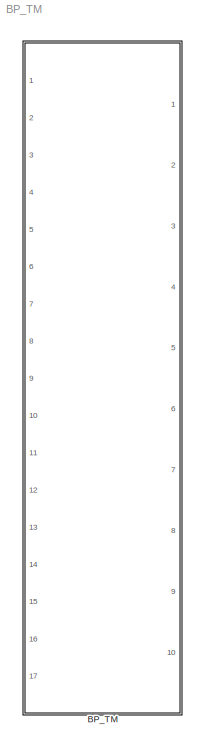
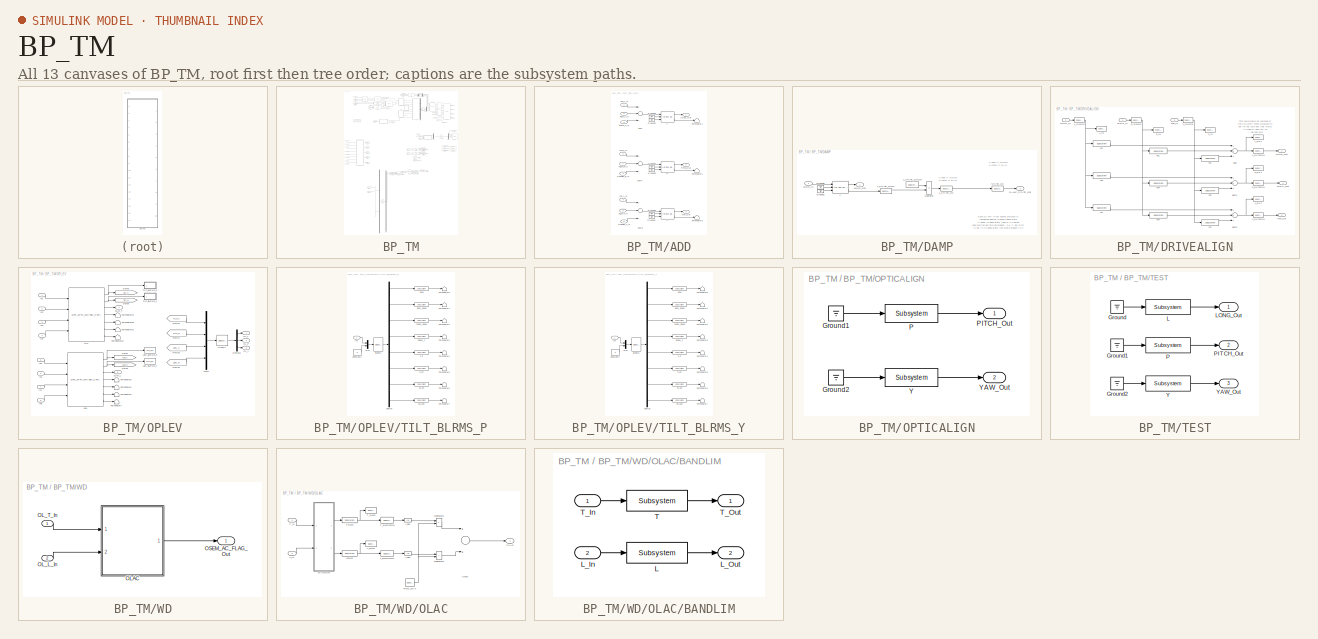
[diagram: thumbnail index - all 13 canvases of the model, root first then tree order]
MODEL BP_TM
KIND model
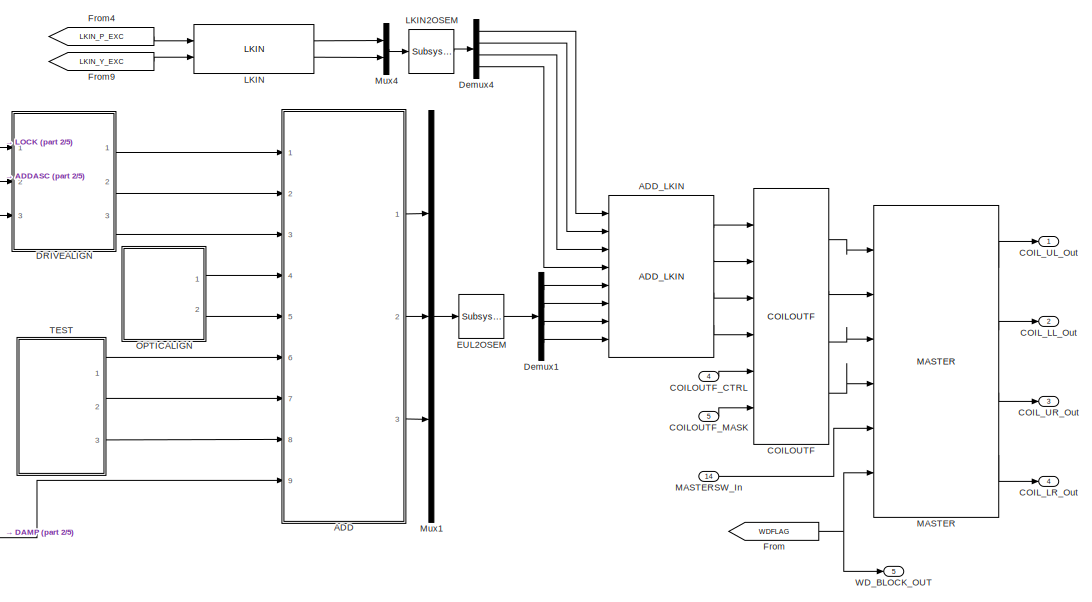
[diagram: BP_TM - part 1/5, top right region]
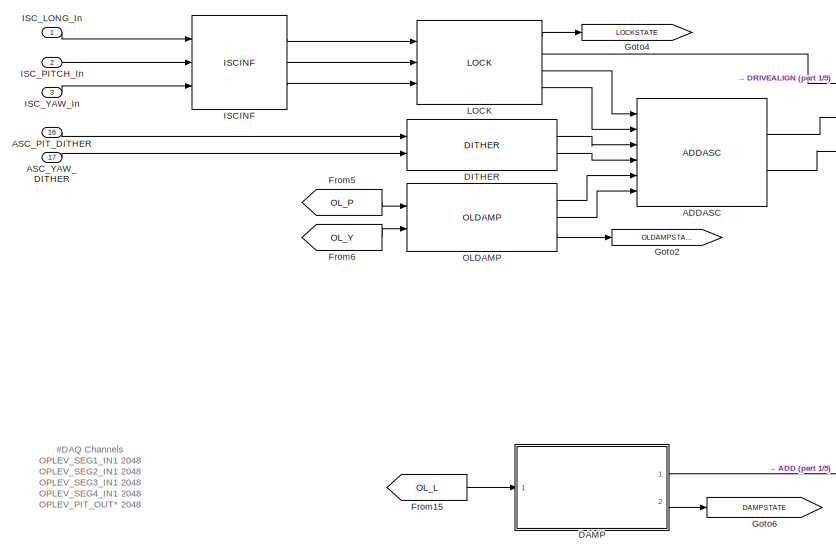
[diagram: BP_TM - part 2/5, top left region]
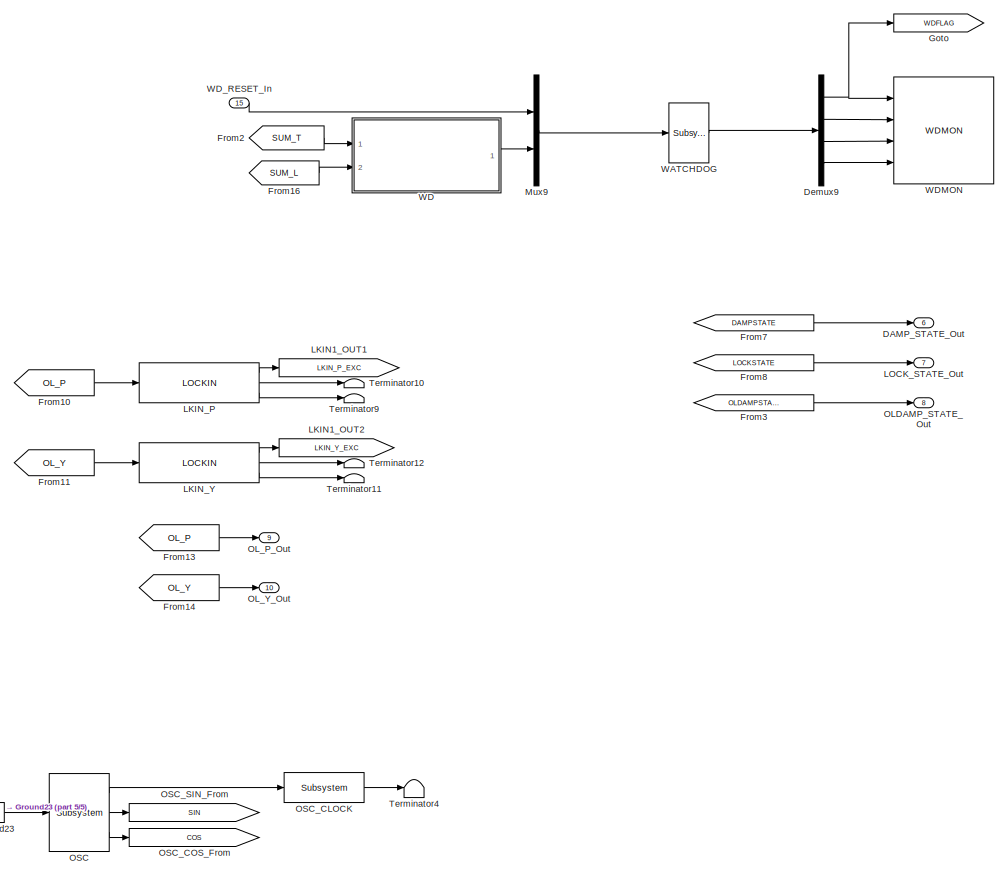
[diagram: BP_TM - part 3/5, middle right region]
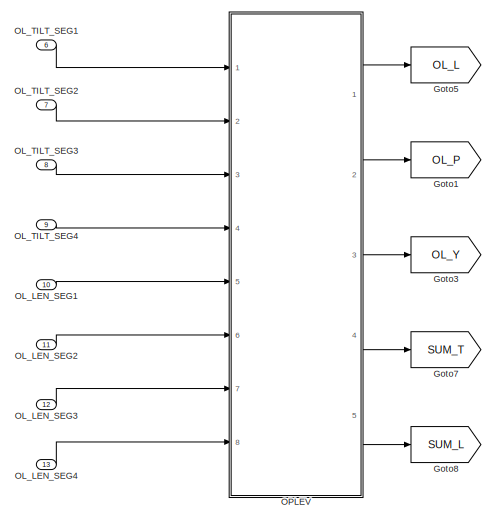
[diagram: BP_TM - part 4/5, middle left region]
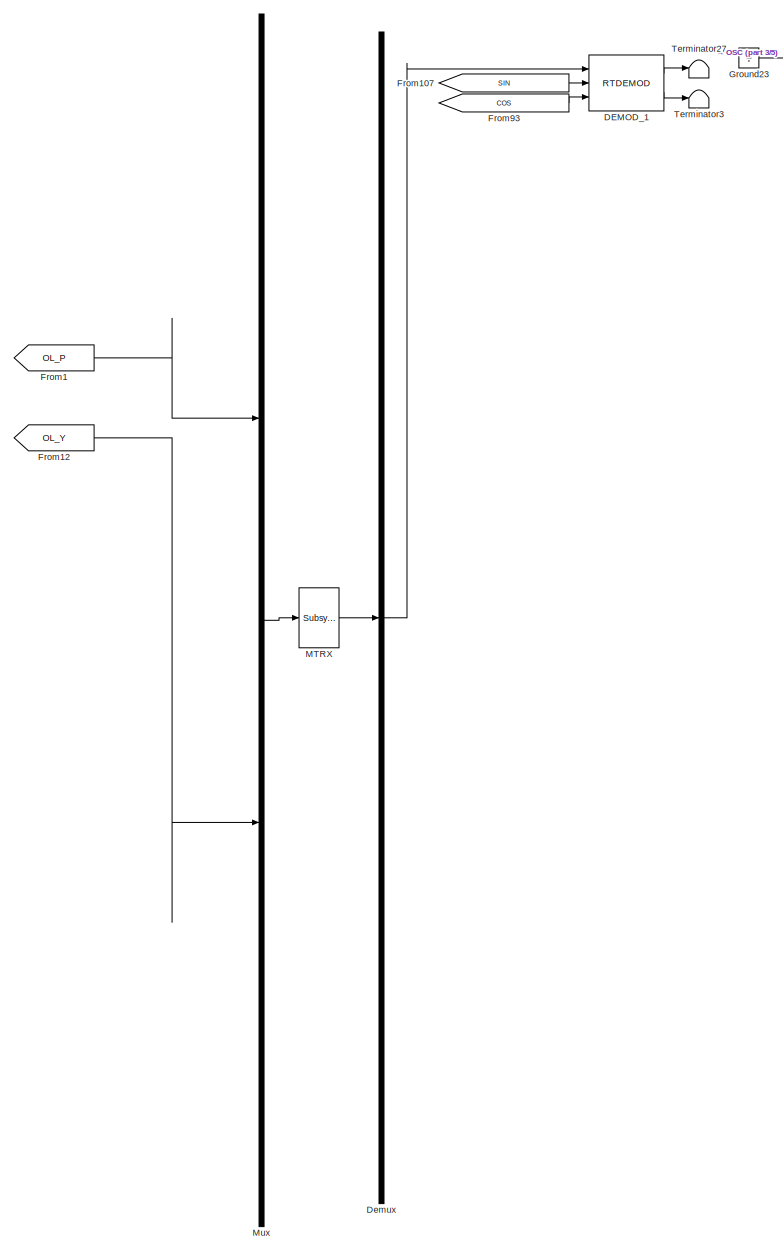
[diagram: BP_TM - part 5/5, bottom center region]
BLOCK [SubSystem] BP_TM
  Ports = [17, 10]
  RequestExecContextInheritance = off
  SID = 1
BLOCK [SubSystem] BP_TM/ADD
  Ports = [9, 3]
  RequestExecContextInheritance = off
  SID = 20
BLOCK [Inport] BP_TM/ADD/DAMP_L_In
  IconDisplay = Port number
  Port = 9
  SID = 29
BLOCK [Ground] BP_TM/ADD/Ground1
  SID = 30
BLOCK [Ground] BP_TM/ADD/Ground2
  SID = 31
BLOCK [Ground] BP_TM/ADD/Ground3
  SID = 32
BLOCK [Ground] BP_TM/ADD/Ground4
  SID = 33
BLOCK [Ground] BP_TM/ADD/Ground5
  SID = 34
BLOCK [Ground] BP_TM/ADD/Ground6
  SID = 35
BLOCK [Inport] BP_TM/ADD/ISC_L_In
  IconDisplay = Port number
  SID = 21
BLOCK [Inport] BP_TM/ADD/ISC_P_In
  IconDisplay = Port number
  Port = 2
  SID = 22
BLOCK [Inport] BP_TM/ADD/ISC_Y_In
  IconDisplay = Port number
  Port = 3
  SID = 23
BLOCK [Reference] BP_TM/ADD/L  REF=cdsFiltCtrl/IIR FM with control
  AttributesFormatString = %<Tag>
  Description = cdsFiltCntrl is the standard IIR filter module (exactly the same as cdsFilt) but with added control data output 'Ctrl'. Filter module digital signal output appears on the first output, which is called 'Val'. 'Ctrl' output has a bit pattern encoding the state of filter's on/off switches (FM1 through FM10). The bit values are:\n                                                                        ...<+4621ch>  <repeated x4 — deduplicated; at blocks: L, P, Y>
  Ports = [3, 2]
  SID = 36
  SourceBlock = cdsFiltCtrl/IIR FM with control
  SourceType = SubSystem
  Tag = cdsFiltCtrl
BLOCK [Outport] BP_TM/ADD/LONG_Out
  IconDisplay = Port number
  SID = 45
BLOCK [Inport] BP_TM/ADD/OFFSET_P_In
  IconDisplay = Port number
  Port = 4
  SID = 24
BLOCK [Inport] BP_TM/ADD/OFFSET_Y_In
  IconDisplay = Port number
  Port = 5
  SID = 25
BLOCK [Reference] BP_TM/ADD/P  REF=cdsFiltCtrl/IIR FM with control
  AttributesFormatString = %<Tag>
  Ports = [3, 2]
  SID = 37
  SourceBlock = cdsFiltCtrl/IIR FM with control
  SourceType = SubSystem
  Tag = cdsFiltCtrl
BLOCK [Outport] BP_TM/ADD/PITCH_Out
  IconDisplay = Port number
  Port = 2
  SID = 46
BLOCK [Sum] BP_TM/ADD/Sum
  InputSameDT = off
  Inputs = +++
  OutDataTypeStr = Inherit: Inherit via internal rule
  Ports = [3, 1]
  SID = 38
  SaturateOnIntegerOverflow = off
BLOCK [Sum] BP_TM/ADD/Sum3
  InputSameDT = off
  Inputs = +++
  OutDataTypeStr = Inherit: Inherit via internal rule
  Ports = [3, 1]
  SID = 39
  SaturateOnIntegerOverflow = off
BLOCK [Sum] BP_TM/ADD/Sum4
  InputSameDT = off
  Inputs = +++
  OutDataTypeStr = Inherit: Inherit via internal rule
  Ports = [3, 1]
  SID = 40
  SaturateOnIntegerOverflow = off
BLOCK [Inport] BP_TM/ADD/TEST_L_In
  IconDisplay = Port number
  Port = 6
  SID = 26
BLOCK [Inport] BP_TM/ADD/TEST_P_In
  IconDisplay = Port number
  Port = 7
  SID = 27
BLOCK [Inport] BP_TM/ADD/TEST_Y_In
  IconDisplay = Port number
  Port = 8
  SID = 28
BLOCK [Terminator] BP_TM/ADD/Terminator1
  SID = 41
BLOCK [Terminator] BP_TM/ADD/Terminator2
  SID = 42
BLOCK [Terminator] BP_TM/ADD/Terminator3
  SID = 43
BLOCK [Reference] BP_TM/ADD/Y  REF=cdsFiltCtrl/IIR FM with control
  AttributesFormatString = %<Tag>
  Ports = [3, 2]
  SID = 44
  SourceBlock = cdsFiltCtrl/IIR FM with control
  SourceType = SubSystem
  Tag = cdsFiltCtrl
BLOCK [Outport] BP_TM/ADD/YAW_Out
  IconDisplay = Port number
  Port = 3
  SID = 47
BLOCK [Reference] BP_TM/ADDASC  REF=VIS_LIB/ADDASC
  Ports = [6, 2]
  SID = 48
  SourceBlock = VIS_LIB/ADDASC
  SourceType = SubSystem
BLOCK [Reference] BP_TM/ADD_LKIN  REF=VIS_LIB/ADD_LKIN
  Ports = [8, 4]
  SID = 49
  SourceBlock = VIS_LIB/ADD_LKIN
  SourceType = SubSystem
BLOCK [Inport] BP_TM/ASC_PIT_DITHER
  IconDisplay = Port number
  Port = 16
  SID = 18
BLOCK [Inport] BP_TM/ASC_YAW_DITHER
  IconDisplay = Port number
  Port = 17
  SID = 19
BLOCK [Reference] BP_TM/COILOUTF  REF=FOUROSEM_COILOUTF_MASTER/COILOUTF
  Ports = [6, 4]
  SID = 50
  SourceBlock = FOUROSEM_COILOUTF_MASTER/COILOUTF
  SourceType = SubSystem
BLOCK [Inport] BP_TM/COILOUTF_CTRL
  IconDisplay = Port number
  Port = 4
  SID = 6
BLOCK [Inport] BP_TM/COILOUTF_MASK
  IconDisplay = Port number
  Port = 5
  SID = 7
BLOCK [Outport] BP_TM/COIL_LL_Out
  IconDisplay = Port number
  Port = 2
  SID = 288
BLOCK [Outport] BP_TM/COIL_LR_Out
  IconDisplay = Port number
  Port = 4
  SID = 290
BLOCK [Outport] BP_TM/COIL_UL_Out
  IconDisplay = Port number
  SID = 287
BLOCK [Outport] BP_TM/COIL_UR_Out
  IconDisplay = Port number
  Port = 3
  SID = 289
BLOCK [SubSystem] BP_TM/DAMP
  Ports = [1, 2]
  RequestExecContextInheritance = off
  SID = 51
BLOCK [Outport] BP_TM/DAMP/DAMP_STATE_Out
  IconDisplay = Port number
  Port = 2
  SID = 62
BLOCK [Ground] BP_TM/DAMP/Ground1
  SID = 53
BLOCK [Ground] BP_TM/DAMP/Ground6
  SID = 54
BLOCK [Reference] BP_TM/DAMP/L  REF=cdsFiltCtrl/IIR FM with control
  AttributesFormatString = %<Tag>
  Ports = [3, 2]
  SID = 55
  SourceBlock = cdsFiltCtrl/IIR FM with control
  SourceType = SubSystem
  Tag = cdsFiltCtrl
BLOCK [Inport] BP_TM/DAMP/LONG_In
  IconDisplay = Port number
  SID = 52
BLOCK [Outport] BP_TM/DAMP/LONG_Out
  IconDisplay = Port number
  SID = 61
BLOCK [Reference] BP_TM/DAMP/L_STATE_GOOD  REF=cdsEpicsIn/Subsystem
  AttributesFormatString = %<Tag>
  Description = Purpose:                                                                              \nCreate an EPICS input channel connection to the FE realtime controls.                 \n                                                                                      \nOperation:                                                                            \nOutputs value from an EPICS ai record. Value is ...<+266ch>
  Ports = [0, 1]
  SID = 56
  SourceBlock = cdsEpicsIn/Subsystem
  SourceType = SubSystem
  Tag = cdsEpicsIn
BLOCK [Reference] BP_TM/DAMP/L_STATE_NOW  REF=cdsEpicsOut/Subsystem
  AttributesFormatString = %<Tag>
  Description = Purpose:                                          \nOutput a FE signal to an EPICS channel.           \n                                                  \nOperation:                                        \nTakes input value and passes it to EPICS record.  \n                                                  \nUsage:                                            \nName the part with the desired EPICS...<+14ch>  <repeated x28 — deduplicated; at blocks: L_STATE_NOW, L_STATE_OK, STATE_OK, L_INMON, L_OUTMON, P_INMON, P_OUTMON, Y_INMON, Y_OUTMON, 100M_300M, 10_30, 1_3, 300M_1, 30M, 30M_100M, 30_100, +4 more>
  Ports = [1, 1]
  SID = 57
  SourceBlock = cdsEpicsOut/Subsystem
  SourceType = SubSystem
  Tag = cdsEpicsOutput
BLOCK [Reference] BP_TM/DAMP/L_STATE_OK  REF=cdsEpicsOut/Subsystem
  AttributesFormatString = %<Tag>
  Ports = [1, 1]
  SID = 58
  SourceBlock = cdsEpicsOut/Subsystem
  SourceType = SubSystem
  Tag = cdsEpicsOutput
BLOCK [RelationalOperator] BP_TM/DAMP/Operator
  InputSameDT = off
  Operator = ==
  OutDataTypeStr = boolean
  Ports = [2, 1]
  SID = 59
BLOCK [Reference] BP_TM/DAMP/STATE_OK  REF=cdsEpicsOut/Subsystem
  AttributesFormatString = %<Tag>
  Ports = [1, 1]
  SID = 60
  SourceBlock = cdsEpicsOut/Subsystem
  SourceType = SubSystem
  Tag = cdsEpicsOutput
BLOCK [Outport] BP_TM/DAMP_STATE_Out
  IconDisplay = Port number
  Port = 6
  SID = 292
BLOCK [Reference] BP_TM/DEMOD_1  REF=rtdemod/RTDEMOD
  Ports = [3, 2]
  SID = 66
  SourceBlock = rtdemod/RTDEMOD
  SourceType = SubSystem
  Tag = top_names
BLOCK [Reference] BP_TM/DITHER  REF=VIS_LIB/DITHER
  Ports = [2, 2]
  SID = 67
  SourceBlock = VIS_LIB/DITHER
  SourceType = SubSystem
BLOCK [SubSystem] BP_TM/DRIVEALIGN
  Ports = [3, 3]
  RequestExecContextInheritance = off
  SID = 68
BLOCK [Reference] BP_TM/DRIVEALIGN/L2L  REF=cdsFilt/Subsystem
  AttributesFormatString = %<Tag>
  Description = Purpose:                                                                                                                                                                                                                                  \nStandard CDS IIR filter module.                                                                                                                                     ...<+1302ch>  <repeated x16 — deduplicated; at blocks: L2L, L2P, L2Y, P2L, P2P, P2Y, Y2L, Y2P, Y2Y, P, Y, L, T>
  Ports = [1, 1]
  SID = 72
  SourceBlock = cdsFilt/Subsystem
  SourceType = SubSystem
  Tag = cdsFilt
BLOCK [Reference] BP_TM/DRIVEALIGN/L2P  REF=cdsFilt/Subsystem
  AttributesFormatString = %<Tag>
  Ports = [1, 1]
  SID = 73
  SourceBlock = cdsFilt/Subsystem
  SourceType = SubSystem
  Tag = cdsFilt
BLOCK [Reference] BP_TM/DRIVEALIGN/L2Y  REF=cdsFilt/Subsystem
  AttributesFormatString = %<Tag>
  Ports = [1, 1]
  SID = 74
  SourceBlock = cdsFilt/Subsystem
  SourceType = SubSystem
  Tag = cdsFilt
BLOCK [Inport] BP_TM/DRIVEALIGN/LONG_In
  IconDisplay = Port number
  SID = 69
BLOCK [Outport] BP_TM/DRIVEALIGN/LONG_Out
  IconDisplay = Port number
  SID = 96
BLOCK [Reference] BP_TM/DRIVEALIGN/L_IN  REF=cdsTP/Subsystem
  AttributesFormatString = %<Tag>
  Ports = [1]
  SID = 75
  SourceBlock = cdsTP/Subsystem
  SourceType = SubSystem
  Tag = Test Point
BLOCK [Reference] BP_TM/DRIVEALIGN/L_INMON  REF=cdsEpicsOut/Subsystem
  AttributesFormatString = %<Tag>
  Ports = [1, 1]
  SID = 76
  SourceBlock = cdsEpicsOut/Subsystem
  SourceType = SubSystem
  Tag = cdsEpicsOutput
BLOCK [Reference] BP_TM/DRIVEALIGN/L_OUT  REF=cdsTP/Subsystem
  AttributesFormatString = %<Tag>
  Ports = [1]
  SID = 77
  SourceBlock = cdsTP/Subsystem
  SourceType = SubSystem
  Tag = Test Point
BLOCK [Reference] BP_TM/DRIVEALIGN/L_OUTMON  REF=cdsEpicsOut/Subsystem
  AttributesFormatString = %<Tag>
  Ports = [1, 1]
  SID = 78
  SourceBlock = cdsEpicsOut/Subsystem
  SourceType = SubSystem
  Tag = cdsEpicsOutput
BLOCK [Reference] BP_TM/DRIVEALIGN/P2L  REF=cdsFilt/Subsystem
  AttributesFormatString = %<Tag>
  Ports = [1, 1]
  SID = 79
  SourceBlock = cdsFilt/Subsystem
  SourceType = SubSystem
  Tag = cdsFilt
BLOCK [Reference] BP_TM/DRIVEALIGN/P2P  REF=cdsFilt/Subsystem
  AttributesFormatString = %<Tag>
  Ports = [1, 1]
  SID = 80
  SourceBlock = cdsFilt/Subsystem
  SourceType = SubSystem
  Tag = cdsFilt
BLOCK [Reference] BP_TM/DRIVEALIGN/P2Y  REF=cdsFilt/Subsystem
  AttributesFormatString = %<Tag>
  Ports = [1, 1]
  SID = 81
  SourceBlock = cdsFilt/Subsystem
  SourceType = SubSystem
  Tag = cdsFilt
BLOCK [Inport] BP_TM/DRIVEALIGN/PITCH_In
  IconDisplay = Port number
  Port = 2
  SID = 70
BLOCK [Outport] BP_TM/DRIVEALIGN/PITCH_Out
  IconDisplay = Port number
  Port = 2
  SID = 97
BLOCK [Reference] BP_TM/DRIVEALIGN/P_IN  REF=cdsTP/Subsystem
  AttributesFormatString = %<Tag>
  Ports = [1]
  SID = 82
  SourceBlock = cdsTP/Subsystem
  SourceType = SubSystem
  Tag = Test Point
BLOCK [Reference] BP_TM/DRIVEALIGN/P_INMON  REF=cdsEpicsOut/Subsystem
  AttributesFormatString = %<Tag>
  Ports = [1, 1]
  SID = 83
  SourceBlock = cdsEpicsOut/Subsystem
  SourceType = SubSystem
  Tag = cdsEpicsOutput
BLOCK [Reference] BP_TM/DRIVEALIGN/P_OUT  REF=cdsTP/Subsystem
  AttributesFormatString = %<Tag>
  Ports = [1]
  SID = 84
  SourceBlock = cdsTP/Subsystem
  SourceType = SubSystem
  Tag = Test Point
BLOCK [Reference] BP_TM/DRIVEALIGN/P_OUTMON  REF=cdsEpicsOut/Subsystem
  AttributesFormatString = %<Tag>
  Ports = [1, 1]
  SID = 85
  SourceBlock = cdsEpicsOut/Subsystem
  SourceType = SubSystem
  Tag = cdsEpicsOutput
BLOCK [Sum] BP_TM/DRIVEALIGN/Sum
  InputSameDT = off
  Inputs = +++
  OutDataTypeStr = Inherit: Inherit via internal rule
  Ports = [3, 1]
  SID = 86
  SaturateOnIntegerOverflow = off
BLOCK [Sum] BP_TM/DRIVEALIGN/Sum1
  InputSameDT = off
  Inputs = +++
  OutDataTypeStr = Inherit: Inherit via internal rule
  Ports = [3, 1]
  SID = 87
  SaturateOnIntegerOverflow = off
BLOCK [Sum] BP_TM/DRIVEALIGN/Sum2
  InputSameDT = off
  Inputs = +++
  OutDataTypeStr = Inherit: Inherit via internal rule
  Ports = [3, 1]
  SID = 88
  SaturateOnIntegerOverflow = off
BLOCK [Reference] BP_TM/DRIVEALIGN/Y2L  REF=cdsFilt/Subsystem
  AttributesFormatString = %<Tag>
  Ports = [1, 1]
  SID = 89
  SourceBlock = cdsFilt/Subsystem
  SourceType = SubSystem
  Tag = cdsFilt
BLOCK [Reference] BP_TM/DRIVEALIGN/Y2P  REF=cdsFilt/Subsystem
  AttributesFormatString = %<Tag>
  Ports = [1, 1]
  SID = 90
  SourceBlock = cdsFilt/Subsystem
  SourceType = SubSystem
  Tag = cdsFilt
BLOCK [Reference] BP_TM/DRIVEALIGN/Y2Y  REF=cdsFilt/Subsystem
  AttributesFormatString = %<Tag>
  Ports = [1, 1]
  SID = 91
  SourceBlock = cdsFilt/Subsystem
  SourceType = SubSystem
  Tag = cdsFilt
BLOCK [Inport] BP_TM/DRIVEALIGN/YAW_In
  IconDisplay = Port number
  Port = 3
  SID = 71
BLOCK [Outport] BP_TM/DRIVEALIGN/YAW_Out
  IconDisplay = Port number
  Port = 3
  SID = 98
BLOCK [Reference] BP_TM/DRIVEALIGN/Y_IN  REF=cdsTP/Subsystem
  AttributesFormatString = %<Tag>
  Ports = [1]
  SID = 92
  SourceBlock = cdsTP/Subsystem
  SourceType = SubSystem
  Tag = Test Point
BLOCK [Reference] BP_TM/DRIVEALIGN/Y_INMON  REF=cdsEpicsOut/Subsystem
  AttributesFormatString = %<Tag>
  Ports = [1, 1]
  SID = 93
  SourceBlock = cdsEpicsOut/Subsystem
  SourceType = SubSystem
  Tag = cdsEpicsOutput
BLOCK [Reference] BP_TM/DRIVEALIGN/Y_OUT  REF=cdsTP/Subsystem
  AttributesFormatString = %<Tag>
  Ports = [1]
  SID = 94
  SourceBlock = cdsTP/Subsystem
  SourceType = SubSystem
  Tag = Test Point
BLOCK [Reference] BP_TM/DRIVEALIGN/Y_OUTMON  REF=cdsEpicsOut/Subsystem
  AttributesFormatString = %<Tag>
  Ports = [1, 1]
  SID = 95
  SourceBlock = cdsEpicsOut/Subsystem
  SourceType = SubSystem
  Tag = cdsEpicsOutput
BLOCK [Demux] BP_TM/Demux
  DisplayOption = bar
  Outputs = 1
  Ports = [1, 1]
  SID = 100
BLOCK [Demux] BP_TM/Demux1
  DisplayOption = bar
  Ports = [1, 4]
  SID = 101
BLOCK [Demux] BP_TM/Demux4
  DisplayOption = bar
  Ports = [1, 4]
  SID = 102
BLOCK [Demux] BP_TM/Demux9
  DisplayOption = bar
  Ports = [1, 4]
  SID = 103
BLOCK [Reference] BP_TM/EUL2OSEM  REF=cdsMuxMatrix/Subsystem
  AttributesFormatString = %<Tag>
  Description = Any size matrix. Inputs and outputs must be connected using Mux and Demux parts.
  Ports = [1, 1]
  SID = 104
  SourceBlock = cdsMuxMatrix/Subsystem
  SourceType = SubSystem
  Tag = cdsMuxMatrix
BLOCK [From] BP_TM/From
  CloseFcn = tagdialog Close
  GotoTag = WDFLAG
  SID = 105
BLOCK [From] BP_TM/From1
  CloseFcn = tagdialog Close
  GotoTag = OL_P
  SID = 106
BLOCK [From] BP_TM/From10
  CloseFcn = tagdialog Close
  GotoTag = OL_P
  SID = 107
BLOCK [From] BP_TM/From107
  GotoTag = SIN
  SID = 108
BLOCK [From] BP_TM/From11
  CloseFcn = tagdialog Close
  GotoTag = OL_Y
  SID = 109
BLOCK [From] BP_TM/From12
  CloseFcn = tagdialog Close
  GotoTag = OL_Y
  SID = 110
BLOCK [From] BP_TM/From13
  CloseFcn = tagdialog Close
  GotoTag = OL_P
  SID = 111
BLOCK [From] BP_TM/From14
  CloseFcn = tagdialog Close
  GotoTag = OL_Y
  SID = 112
BLOCK [From] BP_TM/From15
  CloseFcn = tagdialog Close
  GotoTag = OL_L
  SID = 113
BLOCK [From] BP_TM/From16
  GotoTag = SUM_L
  SID = 114
BLOCK [From] BP_TM/From2
  GotoTag = SUM_T
  SID = 115
BLOCK [From] BP_TM/From3
  CloseFcn = tagdialog Close
  GotoTag = OLDAMPSTATE
  SID = 116
BLOCK [From] BP_TM/From4
  CloseFcn = tagdialog Close
  GotoTag = LKIN_P_EXC
  SID = 117
BLOCK [From] BP_TM/From5
  CloseFcn = tagdialog Close
  GotoTag = OL_P
  SID = 118
BLOCK [From] BP_TM/From6
  CloseFcn = tagdialog Close
  GotoTag = OL_Y
  SID = 119
BLOCK [From] BP_TM/From7
  CloseFcn = tagdialog Close
  GotoTag = DAMPSTATE
  SID = 120
BLOCK [From] BP_TM/From8
  CloseFcn = tagdialog Close
  GotoTag = LOCKSTATE
  SID = 121
BLOCK [From] BP_TM/From9
  CloseFcn = tagdialog Close
  GotoTag = LKIN_Y_EXC
  SID = 122
BLOCK [From] BP_TM/From93
  GotoTag = COS
  SID = 123
BLOCK [Goto] BP_TM/Goto
  GotoTag = WDFLAG
  SID = 124
BLOCK [Goto] BP_TM/Goto1
  GotoTag = OL_P
  SID = 125
BLOCK [Goto] BP_TM/Goto2
  GotoTag = OLDAMPSTATE
  SID = 126
BLOCK [Goto] BP_TM/Goto3
  GotoTag = OL_Y
  SID = 127
BLOCK [Goto] BP_TM/Goto4
  GotoTag = LOCKSTATE
  SID = 128
BLOCK [Goto] BP_TM/Goto5
  GotoTag = OL_L
  SID = 129
BLOCK [Goto] BP_TM/Goto6
  GotoTag = DAMPSTATE
  SID = 130
BLOCK [Goto] BP_TM/Goto7
  GotoTag = SUM_T
  SID = 131
BLOCK [Goto] BP_TM/Goto8
  GotoTag = SUM_L
  SID = 132
BLOCK [Ground] BP_TM/Ground23
  SID = 133
BLOCK [Reference] BP_TM/ISCINF  REF=VIS_LIB/ISCINF
  Ports = [3, 3]
  SID = 134
  SourceBlock = VIS_LIB/ISCINF
  SourceType = SubSystem
BLOCK [Inport] BP_TM/ISC_LONG_In
  IconDisplay = Port number
  SID = 3
BLOCK [Inport] BP_TM/ISC_PITCH_In
  IconDisplay = Port number
  Port = 2
  SID = 4
BLOCK [Inport] BP_TM/ISC_YAW_In
  IconDisplay = Port number
  Port = 3
  SID = 5
BLOCK [Reference] BP_TM/LKIN  REF=VIS_LIB/LKIN
  Ports = [2, 2]
  SID = 135
  SourceBlock = VIS_LIB/LKIN
  SourceType = SubSystem
BLOCK [Goto] BP_TM/LKIN1_OUT1
  GotoTag = LKIN_P_EXC
  SID = 136
BLOCK [Goto] BP_TM/LKIN1_OUT2
  GotoTag = LKIN_Y_EXC
  SID = 137
BLOCK [Reference] BP_TM/LKIN2OSEM  REF=cdsMuxMatrix/Subsystem
  AttributesFormatString = %<Tag>
  Description = Any size matrix. Inputs and outputs must be connected using Mux and Demux parts.
  Ports = [1, 1]
  SID = 138
  SourceBlock = cdsMuxMatrix/Subsystem
  SourceType = SubSystem
  Tag = cdsMuxMatrix
BLOCK [Reference] BP_TM/LKIN_P  REF=lockin/LOCKIN
  AttributesFormatString = %<Tag>
  Description = ADL=LOCKIN.adl
  Ports = [1, 3]
  SID = 139
  SourceBlock = lockin/LOCKIN
  SourceType = SubSystem
BLOCK [Reference] BP_TM/LKIN_Y  REF=lockin/LOCKIN
  AttributesFormatString = %<Tag>
  Description = ADL=LOCKIN.adl
  Ports = [1, 3]
  SID = 140
  SourceBlock = lockin/LOCKIN
  SourceType = SubSystem
BLOCK [Reference] BP_TM/LOCK  REF=VIS_LIB/LOCK
  Ports = [3, 4]
  SID = 141
  SourceBlock = VIS_LIB/LOCK
  SourceType = SubSystem
BLOCK [Outport] BP_TM/LOCK_STATE_Out
  IconDisplay = Port number
  Port = 7
  SID = 293
BLOCK [Reference] BP_TM/MASTER  REF=VIS_LIB/MASTER
  Ports = [6, 4]
  SID = 142
  SourceBlock = VIS_LIB/MASTER
  SourceType = SubSystem
BLOCK [Inport] BP_TM/MASTERSW_In
  IconDisplay = Port number
  Port = 14
  SID = 16
BLOCK [Reference] BP_TM/MTRX  REF=cdsMuxMatrix/Subsystem
  AttributesFormatString = %<Tag>
  Description = Any size matrix. Inputs and outputs must be connected using Mux and Demux parts.
  Ports = [1, 1]
  SID = 143
  SourceBlock = cdsMuxMatrix/Subsystem
  SourceType = SubSystem
  Tag = cdsMuxMatrix
BLOCK [Mux] BP_TM/Mux
  DisplayOption = bar
  Inputs = 2
  Ports = [2, 1]
  SID = 144
BLOCK [Mux] BP_TM/Mux1
  DisplayOption = bar
  Inputs = 3
  Ports = [3, 1]
  SID = 145
BLOCK [Mux] BP_TM/Mux4
  DisplayOption = bar
  Inputs = 2
  Ports = [2, 1]
  SID = 146
BLOCK [Mux] BP_TM/Mux9
  DisplayOption = bar
  Inputs = 2
  Ports = [2, 1]
  SID = 147
BLOCK [Reference] BP_TM/OLDAMP  REF=VIS_LIB/OLDAMP
  Ports = [2, 3]
  SID = 148
  SourceBlock = VIS_LIB/OLDAMP
  SourceType = SubSystem
BLOCK [Outport] BP_TM/OLDAMP_STATE_Out
  IconDisplay = Port number
  Port = 8
  SID = 294
BLOCK [Inport] BP_TM/OL_LEN_SEG1
  IconDisplay = Port number
  Port = 10
  SID = 12
BLOCK [Inport] BP_TM/OL_LEN_SEG2
  IconDisplay = Port number
  Port = 11
  SID = 13
BLOCK [Inport] BP_TM/OL_LEN_SEG3
  IconDisplay = Port number
  Port = 12
  SID = 14
BLOCK [Inport] BP_TM/OL_LEN_SEG4
  IconDisplay = Port number
  Port = 13
  SID = 15
BLOCK [Outport] BP_TM/OL_P_Out
  IconDisplay = Port number
  Port = 9
  SID = 295
BLOCK [Inport] BP_TM/OL_TILT_SEG1
  IconDisplay = Port number
  Port = 6
  SID = 8
BLOCK [Inport] BP_TM/OL_TILT_SEG2
  IconDisplay = Port number
  Port = 7
  SID = 9
BLOCK [Inport] BP_TM/OL_TILT_SEG3
  IconDisplay = Port number
  Port = 8
  SID = 10
BLOCK [Inport] BP_TM/OL_TILT_SEG4
  IconDisplay = Port number
  Port = 9
  SID = 11
BLOCK [Outport] BP_TM/OL_Y_Out
  IconDisplay = Port number
  Port = 10
  SID = 296
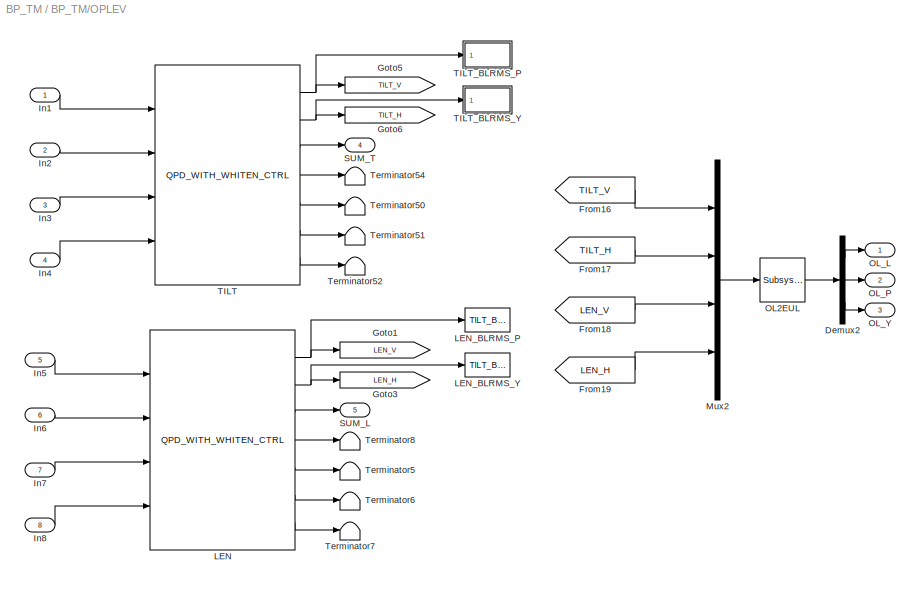
BLOCK [SubSystem] BP_TM/OPLEV
  Ports = [8, 5]
  RequestExecContextInheritance = off
  SID = 149
BLOCK [Demux] BP_TM/OPLEV/Demux2
  DisplayOption = bar
  Outputs = 3
  Ports = [1, 3]
  SID = 158
BLOCK [From] BP_TM/OPLEV/From16
  CloseFcn = tagdialog Close
  GotoTag = TILT_V
  SID = 159
BLOCK [From] BP_TM/OPLEV/From17
  CloseFcn = tagdialog Close
  GotoTag = TILT_H
  SID = 160
BLOCK [From] BP_TM/OPLEV/From18
  CloseFcn = tagdialog Close
  GotoTag = LEN_V
  SID = 161
BLOCK [From] BP_TM/OPLEV/From19
  CloseFcn = tagdialog Close
  GotoTag = LEN_H
  SID = 162
BLOCK [Goto] BP_TM/OPLEV/Goto1
  GotoTag = LEN_V
  SID = 163
BLOCK [Goto] BP_TM/OPLEV/Goto3
  GotoTag = LEN_H
  SID = 164
BLOCK [Goto] BP_TM/OPLEV/Goto5
  GotoTag = TILT_V
  SID = 165
BLOCK [Goto] BP_TM/OPLEV/Goto6
  GotoTag = TILT_H
  SID = 166
BLOCK [Inport] BP_TM/OPLEV/In1
  IconDisplay = Port number
  SID = 150
BLOCK [Inport] BP_TM/OPLEV/In2
  IconDisplay = Port number
  Port = 2
  SID = 151
BLOCK [Inport] BP_TM/OPLEV/In3
  IconDisplay = Port number
  Port = 3
  SID = 152
BLOCK [Inport] BP_TM/OPLEV/In4
  IconDisplay = Port number
  Port = 4
  SID = 153
BLOCK [Inport] BP_TM/OPLEV/In5
  IconDisplay = Port number
  Port = 5
  SID = 154
BLOCK [Inport] BP_TM/OPLEV/In6
  IconDisplay = Port number
  Port = 6
  SID = 155
BLOCK [Inport] BP_TM/OPLEV/In7
  IconDisplay = Port number
  Port = 7
  SID = 156
BLOCK [Inport] BP_TM/OPLEV/In8
  IconDisplay = Port number
  Port = 8
  SID = 157
BLOCK [Reference] BP_TM/OPLEV/LEN  REF=QPD/QPD_WITH_WHITEN_CTRL
  Ports = [4, 7]
  SID = 167
  SourceBlock = QPD/QPD_WITH_WHITEN_CTRL
  SourceType = SubSystem
BLOCK [Reference] BP_TM/OPLEV/LEN_BLRMS_P  REF=VIS_LIB/TypeBpOptics/Subsystem/TILT_BLRMS_P
  Ports = [1]
  RTWMemSecDataConstants = Inherit from model
  RTWMemSecDataInternal = Inherit from model
  RTWMemSecDataParameters = Inherit from model
  RTWMemSecFuncExecute = Inherit from model
  RTWMemSecFuncInitTerm = Inherit from model
  SID = 168
  SourceBlock = VIS_LIB/TypeBpOptics/Subsystem/TILT_BLRMS_P
  SourceType = SubSystem
BLOCK [Reference] BP_TM/OPLEV/LEN_BLRMS_Y  REF=VIS_LIB/TypeBpOptics/Subsystem/TILT_BLRMS_Y
  Ports = [1]
  RTWMemSecDataConstants = Inherit from model
  RTWMemSecDataInternal = Inherit from model
  RTWMemSecDataParameters = Inherit from model
  RTWMemSecFuncExecute = Inherit from model
  RTWMemSecFuncInitTerm = Inherit from model
  SID = 169
  SourceBlock = VIS_LIB/TypeBpOptics/Subsystem/TILT_BLRMS_Y
  SourceType = SubSystem
BLOCK [Mux] BP_TM/OPLEV/Mux2
  DisplayOption = bar
  Ports = [4, 1]
  SID = 170
BLOCK [Reference] BP_TM/OPLEV/OL2EUL  REF=cdsMuxMatrix/Subsystem
  AttributesFormatString = %<Tag>
  Description = Any size matrix. Inputs and outputs must be connected using Mux and Demux parts.
  Ports = [1, 1]
  SID = 171
  SourceBlock = cdsMuxMatrix/Subsystem
  SourceType = SubSystem
  Tag = cdsMuxMatrix
BLOCK [Outport] BP_TM/OPLEV/OL_L
  IconDisplay = Port number
  SID = 225
BLOCK [Outport] BP_TM/OPLEV/OL_P
  IconDisplay = Port number
  Port = 2
  SID = 226
BLOCK [Outport] BP_TM/OPLEV/OL_Y
  IconDisplay = Port number
  Port = 3
  SID = 227
BLOCK [Outport] BP_TM/OPLEV/SUM_L
  IconDisplay = Port number
  Port = 5
  SID = 229
BLOCK [Outport] BP_TM/OPLEV/SUM_T
  IconDisplay = Port number
  Port = 4
  SID = 228
BLOCK [Reference] BP_TM/OPLEV/TILT  REF=QPD/QPD_WITH_WHITEN_CTRL
  Ports = [4, 7]
  SID = 172
  SourceBlock = QPD/QPD_WITH_WHITEN_CTRL
  SourceType = SubSystem
BLOCK [SubSystem] BP_TM/OPLEV/TILT_BLRMS_P
  Ports = [1]
  RequestExecContextInheritance = off
  SID = 173
BLOCK [Reference] BP_TM/OPLEV/TILT_BLRMS_P/100M_300M  REF=cdsEpicsOut/Subsystem
  AttributesFormatString = %<Tag>
  Ports = [1, 1]
  SID = 175
  SourceBlock = cdsEpicsOut/Subsystem
  SourceType = SubSystem
  Tag = cdsEpicsOutput
BLOCK [Reference] BP_TM/OPLEV/TILT_BLRMS_P/10_30  REF=cdsEpicsOut/Subsystem
  AttributesFormatString = %<Tag>
  Ports = [1, 1]
  SID = 176
  SourceBlock = cdsEpicsOut/Subsystem
  SourceType = SubSystem
  Tag = cdsEpicsOutput
BLOCK [Reference] BP_TM/OPLEV/TILT_BLRMS_P/1_3  REF=cdsEpicsOut/Subsystem
  AttributesFormatString = %<Tag>
  Ports = [1, 1]
  SID = 177
  SourceBlock = cdsEpicsOut/Subsystem
  SourceType = SubSystem
  Tag = cdsEpicsOutput
BLOCK [Reference] BP_TM/OPLEV/TILT_BLRMS_P/300M_1  REF=cdsEpicsOut/Subsystem
  AttributesFormatString = %<Tag>
  Ports = [1, 1]
  SID = 178
  SourceBlock = cdsEpicsOut/Subsystem
  SourceType = SubSystem
  Tag = cdsEpicsOutput
BLOCK [Reference] BP_TM/OPLEV/TILT_BLRMS_P/30M  REF=cdsEpicsOut/Subsystem
  AttributesFormatString = %<Tag>
  Ports = [1, 1]
  SID = 179
  SourceBlock = cdsEpicsOut/Subsystem
  SourceType = SubSystem
  Tag = cdsEpicsOutput
BLOCK [Reference] BP_TM/OPLEV/TILT_BLRMS_P/30M_100M  REF=cdsEpicsOut/Subsystem
  AttributesFormatString = %<Tag>
  Ports = [1, 1]
  SID = 180
  SourceBlock = cdsEpicsOut/Subsystem
  SourceType = SubSystem
  Tag = cdsEpicsOutput
BLOCK [Reference] BP_TM/OPLEV/TILT_BLRMS_P/30_100  REF=cdsEpicsOut/Subsystem
  AttributesFormatString = %<Tag>
  Ports = [1, 1]
  SID = 181
  SourceBlock = cdsEpicsOut/Subsystem
  SourceType = SubSystem
  Tag = cdsEpicsOutput
BLOCK [Reference] BP_TM/OPLEV/TILT_BLRMS_P/3_10  REF=cdsEpicsOut/Subsystem
  AttributesFormatString = %<Tag>
  Ports = [1, 1]
  SID = 182
  SourceBlock = cdsEpicsOut/Subsystem
  SourceType = SubSystem
  Tag = cdsEpicsOutput
BLOCK [Reference] BP_TM/OPLEV/TILT_BLRMS_P/BLRMS  REF=cdsFunctionCall/Subsystem
  AttributesFormatString = %<Tag>\\n%<Description>
  Description = inline BLRMS <path>
  Ports = [1, 1]
  SID = 183
  SourceBlock = cdsFunctionCall/Subsystem
  SourceType = SubSystem
  Tag = cdsFunctionCall
BLOCK [Constant] BP_TM/OPLEV/TILT_BLRMS_P/Constant2
  SID = 184
  Value = 2
BLOCK [Demux] BP_TM/OPLEV/TILT_BLRMS_P/Demux
  DisplayOption = bar
  Outputs = 8
  Ports = [1, 8]
  SID = 185
BLOCK [Inport] BP_TM/OPLEV/TILT_BLRMS_P/In1
  IconDisplay = Port number
  SID = 174
BLOCK [Mux] BP_TM/OPLEV/TILT_BLRMS_P/Mux
  DisplayOption = bar
  Inputs = 2
  Ports = [2, 1]
  SID = 186
BLOCK [Terminator] BP_TM/OPLEV/TILT_BLRMS_P/Terminator1
  SID = 187
BLOCK [Terminator] BP_TM/OPLEV/TILT_BLRMS_P/Terminator2
  SID = 188
BLOCK [Terminator] BP_TM/OPLEV/TILT_BLRMS_P/Terminator3
  SID = 189
BLOCK [Terminator] BP_TM/OPLEV/TILT_BLRMS_P/Terminator4
  SID = 190
BLOCK [Terminator] BP_TM/OPLEV/TILT_BLRMS_P/Terminator5
  SID = 191
BLOCK [Terminator] BP_TM/OPLEV/TILT_BLRMS_P/Terminator6
  SID = 192
BLOCK [Terminator] BP_TM/OPLEV/TILT_BLRMS_P/Terminator7
  SID = 193
BLOCK [Terminator] BP_TM/OPLEV/TILT_BLRMS_P/Terminator8
  SID = 194
BLOCK [SubSystem] BP_TM/OPLEV/TILT_BLRMS_Y
  Ports = [1]
  RequestExecContextInheritance = off
  SID = 195
BLOCK [Reference] BP_TM/OPLEV/TILT_BLRMS_Y/100M_300M  REF=cdsEpicsOut/Subsystem
  AttributesFormatString = %<Tag>
  Ports = [1, 1]
  SID = 197
  SourceBlock = cdsEpicsOut/Subsystem
  SourceType = SubSystem
  Tag = cdsEpicsOutput
BLOCK [Reference] BP_TM/OPLEV/TILT_BLRMS_Y/10_30  REF=cdsEpicsOut/Subsystem
  AttributesFormatString = %<Tag>
  Ports = [1, 1]
  SID = 198
  SourceBlock = cdsEpicsOut/Subsystem
  SourceType = SubSystem
  Tag = cdsEpicsOutput
BLOCK [Reference] BP_TM/OPLEV/TILT_BLRMS_Y/1_3  REF=cdsEpicsOut/Subsystem
  AttributesFormatString = %<Tag>
  Ports = [1, 1]
  SID = 199
  SourceBlock = cdsEpicsOut/Subsystem
  SourceType = SubSystem
  Tag = cdsEpicsOutput
BLOCK [Reference] BP_TM/OPLEV/TILT_BLRMS_Y/300M_1  REF=cdsEpicsOut/Subsystem
  AttributesFormatString = %<Tag>
  Ports = [1, 1]
  SID = 200
  SourceBlock = cdsEpicsOut/Subsystem
  SourceType = SubSystem
  Tag = cdsEpicsOutput
BLOCK [Reference] BP_TM/OPLEV/TILT_BLRMS_Y/30M  REF=cdsEpicsOut/Subsystem
  AttributesFormatString = %<Tag>
  Ports = [1, 1]
  SID = 201
  SourceBlock = cdsEpicsOut/Subsystem
  SourceType = SubSystem
  Tag = cdsEpicsOutput
BLOCK [Reference] BP_TM/OPLEV/TILT_BLRMS_Y/30M_100M  REF=cdsEpicsOut/Subsystem
  AttributesFormatString = %<Tag>
  Ports = [1, 1]
  SID = 202
  SourceBlock = cdsEpicsOut/Subsystem
  SourceType = SubSystem
  Tag = cdsEpicsOutput
BLOCK [Reference] BP_TM/OPLEV/TILT_BLRMS_Y/30_100  REF=cdsEpicsOut/Subsystem
  AttributesFormatString = %<Tag>
  Ports = [1, 1]
  SID = 203
  SourceBlock = cdsEpicsOut/Subsystem
  SourceType = SubSystem
  Tag = cdsEpicsOutput
BLOCK [Reference] BP_TM/OPLEV/TILT_BLRMS_Y/3_10  REF=cdsEpicsOut/Subsystem
  AttributesFormatString = %<Tag>
  Ports = [1, 1]
  SID = 204
  SourceBlock = cdsEpicsOut/Subsystem
  SourceType = SubSystem
  Tag = cdsEpicsOutput
BLOCK [Reference] BP_TM/OPLEV/TILT_BLRMS_Y/BLRMS  REF=cdsFunctionCall/Subsystem
  AttributesFormatString = %<Tag>\\n%<Description>
  Description = inline BLRMS <path>
  Ports = [1, 1]
  SID = 205
  SourceBlock = cdsFunctionCall/Subsystem
  SourceType = SubSystem
  Tag = cdsFunctionCall
BLOCK [Constant] BP_TM/OPLEV/TILT_BLRMS_Y/Constant2
  SID = 206
  Value = 2
BLOCK [Demux] BP_TM/OPLEV/TILT_BLRMS_Y/Demux
  DisplayOption = bar
  Outputs = 8
  Ports = [1, 8]
  SID = 207
BLOCK [Inport] BP_TM/OPLEV/TILT_BLRMS_Y/In1
  IconDisplay = Port number
  SID = 196
BLOCK [Mux] BP_TM/OPLEV/TILT_BLRMS_Y/Mux
  DisplayOption = bar
  Inputs = 2
  Ports = [2, 1]
  SID = 208
BLOCK [Terminator] BP_TM/OPLEV/TILT_BLRMS_Y/Terminator1
  SID = 209
BLOCK [Terminator] BP_TM/OPLEV/TILT_BLRMS_Y/Terminator2
  SID = 210
BLOCK [Terminator] BP_TM/OPLEV/TILT_BLRMS_Y/Terminator3
  SID = 211
BLOCK [Terminator] BP_TM/OPLEV/TILT_BLRMS_Y/Terminator4
  SID = 212
BLOCK [Terminator] BP_TM/OPLEV/TILT_BLRMS_Y/Terminator5
  SID = 213
BLOCK [Terminator] BP_TM/OPLEV/TILT_BLRMS_Y/Terminator6
  SID = 214
BLOCK [Terminator] BP_TM/OPLEV/TILT_BLRMS_Y/Terminator7
  SID = 215
BLOCK [Terminator] BP_TM/OPLEV/TILT_BLRMS_Y/Terminator8
  SID = 216
BLOCK [Terminator] BP_TM/OPLEV/Terminator5
  SID = 217
BLOCK [Terminator] BP_TM/OPLEV/Terminator50
  SID = 218
BLOCK [Terminator] BP_TM/OPLEV/Terminator51
  SID = 219
BLOCK [Terminator] BP_TM/OPLEV/Terminator52
  SID = 220
BLOCK [Terminator] BP_TM/OPLEV/Terminator54
  SID = 221
BLOCK [Terminator] BP_TM/OPLEV/Terminator6
  SID = 222
BLOCK [Terminator] BP_TM/OPLEV/Terminator7
  SID = 223
BLOCK [Terminator] BP_TM/OPLEV/Terminator8
  SID = 224
BLOCK [SubSystem] BP_TM/OPTICALIGN
  Ports = [0, 2]
  RequestExecContextInheritance = off
  SID = 230
BLOCK [Ground] BP_TM/OPTICALIGN/Ground1
  SID = 231
BLOCK [Ground] BP_TM/OPTICALIGN/Ground2
  SID = 232
BLOCK [Reference] BP_TM/OPTICALIGN/P  REF=cdsFilt/Subsystem
  AttributesFormatString = %<Tag>
  Ports = [1, 1]
  SID = 233
  SourceBlock = cdsFilt/Subsystem
  SourceType = SubSystem
  Tag = cdsFilt
BLOCK [Outport] BP_TM/OPTICALIGN/PITCH_Out
  IconDisplay = Port number
  SID = 235
BLOCK [Reference] BP_TM/OPTICALIGN/Y  REF=cdsFilt/Subsystem
  AttributesFormatString = %<Tag>
  Ports = [1, 1]
  SID = 234
  SourceBlock = cdsFilt/Subsystem
  SourceType = SubSystem
  Tag = cdsFilt
BLOCK [Outport] BP_TM/OPTICALIGN/YAW_Out
  IconDisplay = Port number
  Port = 2
  SID = 236
BLOCK [Reference] BP_TM/OSC  REF=cdsOsc/Subsystem
  AttributesFormatString = %<Tag>
  Description = Oscillator
  Ports = [1, 3]
  SID = 237
  SourceBlock = cdsOsc/Subsystem
  SourceType = SubSystem
  Tag = cdsOsc
BLOCK [Reference] BP_TM/OSC_CLOCK  REF=cdsEpicsOut/Subsystem
  AttributesFormatString = %<Tag>
  Ports = [1, 1]
  SID = 238
  SourceBlock = cdsEpicsOut/Subsystem
  SourceType = SubSystem
  Tag = cdsEpicsOutput
BLOCK [Goto] BP_TM/OSC_COS_From
  GotoTag = COS
  SID = 239
BLOCK [Goto] BP_TM/OSC_SIN_From
  GotoTag = SIN
  SID = 240
BLOCK [SubSystem] BP_TM/TEST
  Ports = [0, 3]
  RequestExecContextInheritance = off
  SID = 241
BLOCK [Ground] BP_TM/TEST/Ground
  SID = 242
BLOCK [Ground] BP_TM/TEST/Ground1
  SID = 243
BLOCK [Ground] BP_TM/TEST/Ground2
  SID = 244
BLOCK [Reference] BP_TM/TEST/L  REF=cdsFilt/Subsystem
  AttributesFormatString = %<Tag>
  Ports = [1, 1]
  SID = 245
  SourceBlock = cdsFilt/Subsystem
  SourceType = SubSystem
  Tag = cdsFilt
BLOCK [Outport] BP_TM/TEST/LONG_Out
  IconDisplay = Port number
  SID = 248
BLOCK [Reference] BP_TM/TEST/P  REF=cdsFilt/Subsystem
  AttributesFormatString = %<Tag>
  Ports = [1, 1]
  SID = 246
  SourceBlock = cdsFilt/Subsystem
  SourceType = SubSystem
  Tag = cdsFilt
BLOCK [Outport] BP_TM/TEST/PITCH_Out
  IconDisplay = Port number
  Port = 2
  SID = 249
BLOCK [Reference] BP_TM/TEST/Y  REF=cdsFilt/Subsystem
  AttributesFormatString = %<Tag>
  Ports = [1, 1]
  SID = 247
  SourceBlock = cdsFilt/Subsystem
  SourceType = SubSystem
  Tag = cdsFilt
BLOCK [Outport] BP_TM/TEST/YAW_Out
  IconDisplay = Port number
  Port = 3
  SID = 250
BLOCK [Terminator] BP_TM/Terminator10
  SID = 251
BLOCK [Terminator] BP_TM/Terminator11
  SID = 252
BLOCK [Terminator] BP_TM/Terminator12
  SID = 253
BLOCK [Terminator] BP_TM/Terminator27
  SID = 254
BLOCK [Terminator] BP_TM/Terminator3
  SID = 255
BLOCK [Terminator] BP_TM/Terminator4
  SID = 256
BLOCK [Terminator] BP_TM/Terminator9
  SID = 257
BLOCK [Reference] BP_TM/WATCHDOG  REF=cdsFunctionCall/Subsystem
  AttributesFormatString = %<Tag>\\n%<Description>
  Description = inline OSEMWATCHDOG <path>
  Ports = [1, 1]
  SID = 258
  SourceBlock = cdsFunctionCall/Subsystem
  SourceType = SubSystem
  Tag = cdsFunctionCall
BLOCK [SubSystem] BP_TM/WD
  Ports = [2, 1]
  RequestExecContextInheritance = off
  SID = 259
BLOCK [SubSystem] BP_TM/WD/OLAC
  Ports = [2, 1]
  RequestExecContextInheritance = off
  SID = 262
BLOCK [Abs] BP_TM/WD/OLAC/Abs1
  SID = 265
  SaturateOnIntegerOverflow = off
BLOCK [Abs] BP_TM/WD/OLAC/Abs2
  SID = 266
  SaturateOnIntegerOverflow = off
BLOCK [SubSystem] BP_TM/WD/OLAC/BANDLIM
  Ports = [2, 2]
  RequestExecContextInheritance = off
  SID = 267
BLOCK [Reference] BP_TM/WD/OLAC/BANDLIM/L  REF=cdsFilt/Subsystem
  AttributesFormatString = %<Tag>
  Ports = [1, 1]
  SID = 270
  SourceBlock = cdsFilt/Subsystem
  SourceType = SubSystem
  Tag = cdsFilt
BLOCK [Inport] BP_TM/WD/OLAC/BANDLIM/L_In
  IconDisplay = Port number
  Port = 2
  SID = 269
BLOCK [Outport] BP_TM/WD/OLAC/BANDLIM/L_Out
  IconDisplay = Port number
  Port = 2
  SID = 273
BLOCK [Reference] BP_TM/WD/OLAC/BANDLIM/T  REF=cdsFilt/Subsystem
  AttributesFormatString = %<Tag>
  Ports = [1, 1]
  SID = 271
  SourceBlock = cdsFilt/Subsystem
  SourceType = SubSystem
  Tag = cdsFilt
BLOCK [Inport] BP_TM/WD/OLAC/BANDLIM/T_In
  IconDisplay = Port number
  SID = 268
BLOCK [Outport] BP_TM/WD/OLAC/BANDLIM/T_Out
  IconDisplay = Port number
  SID = 272
BLOCK [Outport] BP_TM/WD/OLAC/FLAG
  IconDisplay = Port number
  SID = 284
BLOCK [Reference] BP_TM/WD/OLAC/LRMS  REF=cdsRms/Subsystem
  AttributesFormatString = %<Tag>
  Description = Purpose:                                   \nCalculate an RMS based on the input signal.
  Ports = [1, 1]
  SID = 274
  SourceBlock = cdsRms/Subsystem
  SourceType = SubSystem
  Tag = cdsRms
BLOCK [Inport] BP_TM/WD/OLAC/L_In
  IconDisplay = Port number
  Port = 2
  SID = 264
BLOCK [Reference] BP_TM/WD/OLAC/L_RMS  REF=cdsTP/Subsystem
  AttributesFormatString = %<Tag>
  Ports = [1]
  SID = 275
  SourceBlock = cdsTP/Subsystem
  SourceType = SubSystem
  Tag = Test Point
BLOCK [Reference] BP_TM/WD/OLAC/L_RMSMON  REF=cdsEpicsOut/Subsystem
  AttributesFormatString = %<Tag>
  Ports = [1, 1]
  SID = 276
  SourceBlock = cdsEpicsOut/Subsystem
  SourceType = SubSystem
  Tag = cdsEpicsOutput
BLOCK [RelationalOperator] BP_TM/WD/OLAC/Operator1
  InputSameDT = off
  Operator = >
  OutDataTypeStr = boolean
  Ports = [2, 1]
  SID = 277
BLOCK [RelationalOperator] BP_TM/WD/OLAC/Operator2
  InputSameDT = off
  Operator = >
  OutDataTypeStr = boolean
  Ports = [2, 1]
  SID = 278
  ZeroCross = off
BLOCK [Reference] BP_TM/WD/OLAC/RMS_MAX  REF=cdsEpicsIn/Subsystem
  AttributesFormatString = %<Tag>
  Description = Purpose:                                                                              \nCreate an EPICS input channel connection to the FE realtime controls.                 \n                                                                                      \nOperation:                                                                            \nOutputs value from an EPICS ai record. Value is ...<+266ch>
  Ports = [0, 1]
  SID = 279
  SourceBlock = cdsEpicsIn/Subsystem
  SourceType = SubSystem
  Tag = cdsEpicsIn
BLOCK [Sum] BP_TM/WD/OLAC/Sum1
  InputSameDT = off
  OutDataTypeStr = Inherit: Inherit via internal rule
  Ports = [2, 1]
  SID = 280
  SaturateOnIntegerOverflow = off
BLOCK [Reference] BP_TM/WD/OLAC/TRMS  REF=cdsRms/Subsystem
  AttributesFormatString = %<Tag>
  Description = Purpose:                                   \nCalculate an RMS based on the input signal.
  Ports = [1, 1]
  SID = 281
  SourceBlock = cdsRms/Subsystem
  SourceType = SubSystem
  Tag = cdsRms
BLOCK [Inport] BP_TM/WD/OLAC/T_In
  IconDisplay = Port number
  SID = 263
BLOCK [Reference] BP_TM/WD/OLAC/T_RMS  REF=cdsTP/Subsystem
  AttributesFormatString = %<Tag>
  Ports = [1]
  SID = 282
  SourceBlock = cdsTP/Subsystem
  SourceType = SubSystem
  Tag = Test Point
BLOCK [Reference] BP_TM/WD/OLAC/T_RMSMON  REF=cdsEpicsOut/Subsystem
  AttributesFormatString = %<Tag>
  Ports = [1, 1]
  SID = 283
  SourceBlock = cdsEpicsOut/Subsystem
  SourceType = SubSystem
  Tag = cdsEpicsOutput
BLOCK [Inport] BP_TM/WD/OL_L_In
  IconDisplay = Port number
  Port = 2
  SID = 261
BLOCK [Inport] BP_TM/WD/OL_T_In
  IconDisplay = Port number
  SID = 260
BLOCK [Outport] BP_TM/WD/OSEM_AC_FLAG_Out
  IconDisplay = Port number
  SID = 285
BLOCK [Reference] BP_TM/WDMON  REF=VIS_LIB/WDMON
  Ports = [4]
  SID = 286
  SourceBlock = VIS_LIB/WDMON
  SourceType = SubSystem
BLOCK [Outport] BP_TM/WD_BLOCK_OUT
  IconDisplay = Port number
  Port = 5
  SID = 291
BLOCK [Inport] BP_TM/WD_RESET_In
  IconDisplay = Port number
  Port = 15
  SID = 17
ANNOTATION BP_TM: #DAQ Channels\nOPLEV_SEG1_IN1 2048\nOPLEV_SEG2_IN1 2048\nOPLEV_SEG3_IN1 2048\nOPLEV_SEG4_IN1 2048\nOPLEV_PIT_OUT* 2048\nOPLEV_YAW_OUT* 2048\nOPLEV_SUM_OUT 2048\nOSEMINF_H1_IN1 2048\nOSEMINF_H2_IN1 2048\nOSEMINF_H3_IN1 2048\nOSEMINF_H4_IN1 2048\nISCINF_L_IN1 2048
ANNOTATION BP_TM/DAMP: 1 (one) if GOOD\n0 (zero) if BAD
ANNOTATION BP_TM/DAMP: Each DAMP filter output bitword is \ncompared against a known good state.\nIf equal to good state, then a 1 is output \nand multiplied into the product. So, if any DOF\nis not in its good state, the whole product is 0.
ANNOTATION BP_TM/DRIVEALIGN: This could/should be replaced by\nthe CDS_PART cdsFiltMuxMatrix,\nbut I'm not sure how that works \nin MEDM land just yet \n-- JSK Feb 2011
LINE BP_TM/ADD/DAMP_L_In:1 -> BP_TM/ADD/Sum:3
LINE BP_TM/ADD/Ground1:1 -> BP_TM/ADD/L:3
LINE BP_TM/ADD/Ground2:1 -> BP_TM/ADD/P:3
LINE BP_TM/ADD/Ground3:1 -> BP_TM/ADD/P:2
LINE BP_TM/ADD/Ground4:1 -> BP_TM/ADD/Y:3
LINE BP_TM/ADD/Ground5:1 -> BP_TM/ADD/Y:2
LINE BP_TM/ADD/Ground6:1 -> BP_TM/ADD/L:2
LINE BP_TM/ADD/ISC_L_In:1 -> BP_TM/ADD/Sum:1
LINE BP_TM/ADD/ISC_P_In:1 -> BP_TM/ADD/Sum4:1
LINE BP_TM/ADD/ISC_Y_In:1 -> BP_TM/ADD/Sum3:1
LINE BP_TM/ADD/L:1 -> BP_TM/ADD/LONG_Out:1
LINE BP_TM/ADD/L:2 -> BP_TM/ADD/Terminator1:1
LINE BP_TM/ADD/OFFSET_P_In:1 -> BP_TM/ADD/Sum4:3
LINE BP_TM/ADD/OFFSET_Y_In:1 -> BP_TM/ADD/Sum3:3
LINE BP_TM/ADD/P:1 -> BP_TM/ADD/PITCH_Out:1
LINE BP_TM/ADD/P:2 -> BP_TM/ADD/Terminator2:1
LINE BP_TM/ADD/Sum3:1 -> BP_TM/ADD/Y:1
LINE BP_TM/ADD/Sum4:1 -> BP_TM/ADD/P:1
LINE BP_TM/ADD/Sum:1 -> BP_TM/ADD/L:1
LINE BP_TM/ADD/TEST_L_In:1 -> BP_TM/ADD/Sum:2
LINE BP_TM/ADD/TEST_P_In:1 -> BP_TM/ADD/Sum4:2
LINE BP_TM/ADD/TEST_Y_In:1 -> BP_TM/ADD/Sum3:2
LINE BP_TM/ADD/Y:1 -> BP_TM/ADD/YAW_Out:1
LINE BP_TM/ADD/Y:2 -> BP_TM/ADD/Terminator3:1
LINE BP_TM/ADD:1 -> BP_TM/Mux1:1
LINE BP_TM/ADD:2 -> BP_TM/Mux1:2
LINE BP_TM/ADD:3 -> BP_TM/Mux1:3
LINE BP_TM/ADDASC:1 -> BP_TM/DRIVEALIGN:2
LINE BP_TM/ADDASC:2 -> BP_TM/DRIVEALIGN:3
LINE BP_TM/ADD_LKIN:1 -> BP_TM/COILOUTF:1
LINE BP_TM/ADD_LKIN:2 -> BP_TM/COILOUTF:2
LINE BP_TM/ADD_LKIN:3 -> BP_TM/COILOUTF:3
LINE BP_TM/ADD_LKIN:4 -> BP_TM/COILOUTF:4
LINE BP_TM/ASC_PIT_DITHER:1 -> BP_TM/DITHER:1
LINE BP_TM/ASC_YAW_DITHER:1 -> BP_TM/DITHER:2
LINE BP_TM/COILOUTF:1 -> BP_TM/MASTER:1
LINE BP_TM/COILOUTF:2 -> BP_TM/MASTER:2
LINE BP_TM/COILOUTF:3 -> BP_TM/MASTER:3
LINE BP_TM/COILOUTF:4 -> BP_TM/MASTER:4
LINE BP_TM/COILOUTF_CTRL:1 -> BP_TM/COILOUTF:5
LINE BP_TM/COILOUTF_MASK:1 -> BP_TM/COILOUTF:6
LINE BP_TM/DAMP/Ground1:1 -> BP_TM/DAMP/L:3
LINE BP_TM/DAMP/Ground6:1 -> BP_TM/DAMP/L:2
LINE BP_TM/DAMP/L:1 -> BP_TM/DAMP/LONG_Out:1
LINE BP_TM/DAMP/L:2 -> BP_TM/DAMP/L_STATE_NOW:1
LINE BP_TM/DAMP/LONG_In:1 -> BP_TM/DAMP/L:1
LINE BP_TM/DAMP/L_STATE_GOOD:1 -> BP_TM/DAMP/Operator:1
LINE BP_TM/DAMP/L_STATE_NOW:1 -> BP_TM/DAMP/Operator:2
LINE BP_TM/DAMP/L_STATE_OK:1 -> BP_TM/DAMP/STATE_OK:1
LINE BP_TM/DAMP/Operator:1 -> BP_TM/DAMP/L_STATE_OK:1
LINE BP_TM/DAMP/STATE_OK:1 -> BP_TM/DAMP/DAMP_STATE_Out:1
LINE BP_TM/DAMP:1 -> BP_TM/ADD:9
LINE BP_TM/DAMP:2 -> BP_TM/Goto6:1
LINE BP_TM/DEMOD_1:1 -> BP_TM/Terminator27:1
LINE BP_TM/DEMOD_1:2 -> BP_TM/Terminator3:1
LINE BP_TM/DITHER:1 -> BP_TM/ADDASC:3
LINE BP_TM/DITHER:2 -> BP_TM/ADDASC:4
LINE BP_TM/DRIVEALIGN/L2L:1 -> BP_TM/DRIVEALIGN/Sum:1
LINE BP_TM/DRIVEALIGN/L2P:1 -> BP_TM/DRIVEALIGN/Sum1:1
LINE BP_TM/DRIVEALIGN/L2Y:1 -> BP_TM/DRIVEALIGN/Sum2:1
LINE BP_TM/DRIVEALIGN/LONG_In:1 -> BP_TM/DRIVEALIGN/L_INMON:1
NET BP_TM/DRIVEALIGN/L_INMON:1 -> BP_TM/DRIVEALIGN/L2L:1, BP_TM/DRIVEALIGN/L2P:1, BP_TM/DRIVEALIGN/L2Y:1, BP_TM/DRIVEALIGN/L_IN:1
LINE BP_TM/DRIVEALIGN/L_OUTMON:1 -> BP_TM/DRIVEALIGN/LONG_Out:1
LINE BP_TM/DRIVEALIGN/P2L:1 -> BP_TM/DRIVEALIGN/Sum:2
LINE BP_TM/DRIVEALIGN/P2P:1 -> BP_TM/DRIVEALIGN/Sum1:2
LINE BP_TM/DRIVEALIGN/P2Y:1 -> BP_TM/DRIVEALIGN/Sum2:2
LINE BP_TM/DRIVEALIGN/PITCH_In:1 -> BP_TM/DRIVEALIGN/P_INMON:1
NET BP_TM/DRIVEALIGN/P_INMON:1 -> BP_TM/DRIVEALIGN/P2L:1, BP_TM/DRIVEALIGN/P2P:1, BP_TM/DRIVEALIGN/P2Y:1, BP_TM/DRIVEALIGN/P_IN:1
LINE BP_TM/DRIVEALIGN/P_OUTMON:1 -> BP_TM/DRIVEALIGN/PITCH_Out:1
NET BP_TM/DRIVEALIGN/Sum1:1 -> BP_TM/DRIVEALIGN/P_OUT:1, BP_TM/DRIVEALIGN/P_OUTMON:1
NET BP_TM/DRIVEALIGN/Sum2:1 -> BP_TM/DRIVEALIGN/Y_OUT:1, BP_TM/DRIVEALIGN/Y_OUTMON:1
NET BP_TM/DRIVEALIGN/Sum:1 -> BP_TM/DRIVEALIGN/L_OUT:1, BP_TM/DRIVEALIGN/L_OUTMON:1
LINE BP_TM/DRIVEALIGN/Y2L:1 -> BP_TM/DRIVEALIGN/Sum:3
LINE BP_TM/DRIVEALIGN/Y2P:1 -> BP_TM/DRIVEALIGN/Sum1:3
LINE BP_TM/DRIVEALIGN/Y2Y:1 -> BP_TM/DRIVEALIGN/Sum2:3
LINE BP_TM/DRIVEALIGN/YAW_In:1 -> BP_TM/DRIVEALIGN/Y_INMON:1
NET BP_TM/DRIVEALIGN/Y_INMON:1 -> BP_TM/DRIVEALIGN/Y2L:1, BP_TM/DRIVEALIGN/Y2P:1, BP_TM/DRIVEALIGN/Y2Y:1, BP_TM/DRIVEALIGN/Y_IN:1
LINE BP_TM/DRIVEALIGN/Y_OUTMON:1 -> BP_TM/DRIVEALIGN/YAW_Out:1
LINE BP_TM/DRIVEALIGN:1 -> BP_TM/ADD:1
LINE BP_TM/DRIVEALIGN:2 -> BP_TM/ADD:2
LINE BP_TM/DRIVEALIGN:3 -> BP_TM/ADD:3
LINE BP_TM/Demux1:1 -> BP_TM/ADD_LKIN:5
LINE BP_TM/Demux1:2 -> BP_TM/ADD_LKIN:6
LINE BP_TM/Demux1:3 -> BP_TM/ADD_LKIN:7
LINE BP_TM/Demux1:4 -> BP_TM/ADD_LKIN:8
LINE BP_TM/Demux4:1 -> BP_TM/ADD_LKIN:1
LINE BP_TM/Demux4:2 -> BP_TM/ADD_LKIN:2
LINE BP_TM/Demux4:3 -> BP_TM/ADD_LKIN:3
LINE BP_TM/Demux4:4 -> BP_TM/ADD_LKIN:4
NET BP_TM/Demux9:1 -> BP_TM/Goto:1, BP_TM/WDMON:1
LINE BP_TM/Demux9:2 -> BP_TM/WDMON:2
LINE BP_TM/Demux9:3 -> BP_TM/WDMON:3
LINE BP_TM/Demux9:4 -> BP_TM/WDMON:4
LINE BP_TM/Demux:1 -> BP_TM/DEMOD_1:1
LINE BP_TM/EUL2OSEM:1 -> BP_TM/Demux1:1
LINE BP_TM/From107:1 -> BP_TM/DEMOD_1:2
LINE BP_TM/From10:1 -> BP_TM/LKIN_P:1
LINE BP_TM/From11:1 -> BP_TM/LKIN_Y:1
LINE BP_TM/From12:1 -> BP_TM/Mux:2
LINE BP_TM/From13:1 -> BP_TM/OL_P_Out:1
LINE BP_TM/From14:1 -> BP_TM/OL_Y_Out:1
LINE BP_TM/From15:1 -> BP_TM/DAMP:1
LINE BP_TM/From16:1 -> BP_TM/WD:2
LINE BP_TM/From1:1 -> BP_TM/Mux:1
LINE BP_TM/From2:1 -> BP_TM/WD:1
LINE BP_TM/From3:1 -> BP_TM/OLDAMP_STATE_Out:1
LINE BP_TM/From4:1 -> BP_TM/LKIN:1
LINE BP_TM/From5:1 -> BP_TM/OLDAMP:1
LINE BP_TM/From6:1 -> BP_TM/OLDAMP:2
LINE BP_TM/From7:1 -> BP_TM/DAMP_STATE_Out:1
LINE BP_TM/From8:1 -> BP_TM/LOCK_STATE_Out:1
LINE BP_TM/From93:1 -> BP_TM/DEMOD_1:3
LINE BP_TM/From9:1 -> BP_TM/LKIN:2
NET BP_TM/From:1 -> BP_TM/MASTER:6, BP_TM/WD_BLOCK_OUT:1
LINE BP_TM/Ground23:1 -> BP_TM/OSC:1
LINE BP_TM/ISCINF:1 -> BP_TM/LOCK:1
LINE BP_TM/ISCINF:2 -> BP_TM/LOCK:2
LINE BP_TM/ISCINF:3 -> BP_TM/LOCK:3
LINE BP_TM/ISC_LONG_In:1 -> BP_TM/ISCINF:1
LINE BP_TM/ISC_PITCH_In:1 -> BP_TM/ISCINF:2
LINE BP_TM/ISC_YAW_In:1 -> BP_TM/ISCINF:3
LINE BP_TM/LKIN2OSEM:1 -> BP_TM/Demux4:1
LINE BP_TM/LKIN:1 -> BP_TM/Mux4:1
LINE BP_TM/LKIN:2 -> BP_TM/Mux4:2
LINE BP_TM/LKIN_P:1 -> BP_TM/LKIN1_OUT1:1
LINE BP_TM/LKIN_P:2 -> BP_TM/Terminator10:1
LINE BP_TM/LKIN_P:3 -> BP_TM/Terminator9:1
LINE BP_TM/LKIN_Y:1 -> BP_TM/LKIN1_OUT2:1
LINE BP_TM/LKIN_Y:2 -> BP_TM/Terminator12:1
LINE BP_TM/LKIN_Y:3 -> BP_TM/Terminator11:1
LINE BP_TM/LOCK:1 -> BP_TM/Goto4:1
LINE BP_TM/LOCK:2 -> BP_TM/DRIVEALIGN:1
LINE BP_TM/LOCK:3 -> BP_TM/ADDASC:1
LINE BP_TM/LOCK:4 -> BP_TM/ADDASC:2
LINE BP_TM/MASTER:1 -> BP_TM/COIL_UL_Out:1
LINE BP_TM/MASTER:2 -> BP_TM/COIL_LL_Out:1
LINE BP_TM/MASTER:3 -> BP_TM/COIL_UR_Out:1
LINE BP_TM/MASTER:4 -> BP_TM/COIL_LR_Out:1
LINE BP_TM/MASTERSW_In:1 -> BP_TM/MASTER:5
LINE BP_TM/MTRX:1 -> BP_TM/Demux:1
LINE BP_TM/Mux1:1 -> BP_TM/EUL2OSEM:1
LINE BP_TM/Mux4:1 -> BP_TM/LKIN2OSEM:1
LINE BP_TM/Mux9:1 -> BP_TM/WATCHDOG:1
LINE BP_TM/Mux:1 -> BP_TM/MTRX:1
LINE BP_TM/OLDAMP:1 -> BP_TM/ADDASC:5
LINE BP_TM/OLDAMP:2 -> BP_TM/ADDASC:6
LINE BP_TM/OLDAMP:3 -> BP_TM/Goto2:1
LINE BP_TM/OL_LEN_SEG1:1 -> BP_TM/OPLEV:5
LINE BP_TM/OL_LEN_SEG2:1 -> BP_TM/OPLEV:6
LINE BP_TM/OL_LEN_SEG3:1 -> BP_TM/OPLEV:7
LINE BP_TM/OL_LEN_SEG4:1 -> BP_TM/OPLEV:8
LINE BP_TM/OL_TILT_SEG1:1 -> BP_TM/OPLEV:1
LINE BP_TM/OL_TILT_SEG2:1 -> BP_TM/OPLEV:2
LINE BP_TM/OL_TILT_SEG3:1 -> BP_TM/OPLEV:3
LINE BP_TM/OL_TILT_SEG4:1 -> BP_TM/OPLEV:4
LINE BP_TM/OPLEV/Demux2:1 -> BP_TM/OPLEV/OL_L:1
LINE BP_TM/OPLEV/Demux2:2 -> BP_TM/OPLEV/OL_P:1
LINE BP_TM/OPLEV/Demux2:3 -> BP_TM/OPLEV/OL_Y:1
LINE BP_TM/OPLEV/From16:1 -> BP_TM/OPLEV/Mux2:1
LINE BP_TM/OPLEV/From17:1 -> BP_TM/OPLEV/Mux2:2
LINE BP_TM/OPLEV/From18:1 -> BP_TM/OPLEV/Mux2:3
LINE BP_TM/OPLEV/From19:1 -> BP_TM/OPLEV/Mux2:4
LINE BP_TM/OPLEV/In1:1 -> BP_TM/OPLEV/TILT:1
LINE BP_TM/OPLEV/In2:1 -> BP_TM/OPLEV/TILT:2
LINE BP_TM/OPLEV/In3:1 -> BP_TM/OPLEV/TILT:3
LINE BP_TM/OPLEV/In4:1 -> BP_TM/OPLEV/TILT:4
LINE BP_TM/OPLEV/In5:1 -> BP_TM/OPLEV/LEN:1
LINE BP_TM/OPLEV/In6:1 -> BP_TM/OPLEV/LEN:2
LINE BP_TM/OPLEV/In7:1 -> BP_TM/OPLEV/LEN:3
LINE BP_TM/OPLEV/In8:1 -> BP_TM/OPLEV/LEN:4
NET BP_TM/OPLEV/LEN:1 -> BP_TM/OPLEV/Goto1:1, BP_TM/OPLEV/LEN_BLRMS_P:1
NET BP_TM/OPLEV/LEN:2 -> BP_TM/OPLEV/Goto3:1, BP_TM/OPLEV/LEN_BLRMS_Y:1
LINE BP_TM/OPLEV/LEN:3 -> BP_TM/OPLEV/SUM_L:1
LINE BP_TM/OPLEV/LEN:4 -> BP_TM/OPLEV/Terminator8:1
LINE BP_TM/OPLEV/LEN:5 -> BP_TM/OPLEV/Terminator5:1
LINE BP_TM/OPLEV/LEN:6 -> BP_TM/OPLEV/Terminator6:1
LINE BP_TM/OPLEV/LEN:7 -> BP_TM/OPLEV/Terminator7:1
LINE BP_TM/OPLEV/Mux2:1 -> BP_TM/OPLEV/OL2EUL:1
LINE BP_TM/OPLEV/OL2EUL:1 -> BP_TM/OPLEV/Demux2:1
NET BP_TM/OPLEV/TILT:1 -> BP_TM/OPLEV/Goto5:1, BP_TM/OPLEV/TILT_BLRMS_P:1
NET BP_TM/OPLEV/TILT:2 -> BP_TM/OPLEV/Goto6:1, BP_TM/OPLEV/TILT_BLRMS_Y:1
LINE BP_TM/OPLEV/TILT:3 -> BP_TM/OPLEV/SUM_T:1
LINE BP_TM/OPLEV/TILT:4 -> BP_TM/OPLEV/Terminator54:1
LINE BP_TM/OPLEV/TILT:5 -> BP_TM/OPLEV/Terminator50:1
LINE BP_TM/OPLEV/TILT:6 -> BP_TM/OPLEV/Terminator51:1
LINE BP_TM/OPLEV/TILT:7 -> BP_TM/OPLEV/Terminator52:1
LINE BP_TM/OPLEV/TILT_BLRMS_P/100M_300M:1 -> BP_TM/OPLEV/TILT_BLRMS_P/Terminator2:1
LINE BP_TM/OPLEV/TILT_BLRMS_P/10_30:1 -> BP_TM/OPLEV/TILT_BLRMS_P/Terminator6:1
LINE BP_TM/OPLEV/TILT_BLRMS_P/1_3:1 -> BP_TM/OPLEV/TILT_BLRMS_P/Terminator4:1
LINE BP_TM/OPLEV/TILT_BLRMS_P/300M_1:1 -> BP_TM/OPLEV/TILT_BLRMS_P/Terminator3:1
LINE BP_TM/OPLEV/TILT_BLRMS_P/30M:1 -> BP_TM/OPLEV/TILT_BLRMS_P/Terminator8:1
LINE BP_TM/OPLEV/TILT_BLRMS_P/30M_100M:1 -> BP_TM/OPLEV/TILT_BLRMS_P/Terminator1:1
LINE BP_TM/OPLEV/TILT_BLRMS_P/30_100:1 -> BP_TM/OPLEV/TILT_BLRMS_P/Terminator7:1
LINE BP_TM/OPLEV/TILT_BLRMS_P/3_10:1 -> BP_TM/OPLEV/TILT_BLRMS_P/Terminator5:1
LINE BP_TM/OPLEV/TILT_BLRMS_P/BLRMS:1 -> BP_TM/OPLEV/TILT_BLRMS_P/Demux:1
LINE BP_TM/OPLEV/TILT_BLRMS_P/Constant2:1 -> BP_TM/OPLEV/TILT_BLRMS_P/Mux:2
LINE BP_TM/OPLEV/TILT_BLRMS_P/Demux:1 -> BP_TM/OPLEV/TILT_BLRMS_P/30M:1
LINE BP_TM/OPLEV/TILT_BLRMS_P/Demux:2 -> BP_TM/OPLEV/TILT_BLRMS_P/30M_100M:1
LINE BP_TM/OPLEV/TILT_BLRMS_P/Demux:3 -> BP_TM/OPLEV/TILT_BLRMS_P/100M_300M:1
LINE BP_TM/OPLEV/TILT_BLRMS_P/Demux:4 -> BP_TM/OPLEV/TILT_BLRMS_P/300M_1:1
LINE BP_TM/OPLEV/TILT_BLRMS_P/Demux:5 -> BP_TM/OPLEV/TILT_BLRMS_P/1_3:1
LINE BP_TM/OPLEV/TILT_BLRMS_P/Demux:6 -> BP_TM/OPLEV/TILT_BLRMS_P/3_10:1
LINE BP_TM/OPLEV/TILT_BLRMS_P/Demux:7 -> BP_TM/OPLEV/TILT_BLRMS_P/10_30:1
LINE BP_TM/OPLEV/TILT_BLRMS_P/Demux:8 -> BP_TM/OPLEV/TILT_BLRMS_P/30_100:1
LINE BP_TM/OPLEV/TILT_BLRMS_P/In1:1 -> BP_TM/OPLEV/TILT_BLRMS_P/Mux:1
LINE BP_TM/OPLEV/TILT_BLRMS_P/Mux:1 -> BP_TM/OPLEV/TILT_BLRMS_P/BLRMS:1
LINE BP_TM/OPLEV/TILT_BLRMS_Y/100M_300M:1 -> BP_TM/OPLEV/TILT_BLRMS_Y/Terminator2:1
LINE BP_TM/OPLEV/TILT_BLRMS_Y/10_30:1 -> BP_TM/OPLEV/TILT_BLRMS_Y/Terminator6:1
LINE BP_TM/OPLEV/TILT_BLRMS_Y/1_3:1 -> BP_TM/OPLEV/TILT_BLRMS_Y/Terminator4:1
LINE BP_TM/OPLEV/TILT_BLRMS_Y/300M_1:1 -> BP_TM/OPLEV/TILT_BLRMS_Y/Terminator3:1
LINE BP_TM/OPLEV/TILT_BLRMS_Y/30M:1 -> BP_TM/OPLEV/TILT_BLRMS_Y/Terminator8:1
LINE BP_TM/OPLEV/TILT_BLRMS_Y/30M_100M:1 -> BP_TM/OPLEV/TILT_BLRMS_Y/Terminator1:1
LINE BP_TM/OPLEV/TILT_BLRMS_Y/30_100:1 -> BP_TM/OPLEV/TILT_BLRMS_Y/Terminator7:1
LINE BP_TM/OPLEV/TILT_BLRMS_Y/3_10:1 -> BP_TM/OPLEV/TILT_BLRMS_Y/Terminator5:1
LINE BP_TM/OPLEV/TILT_BLRMS_Y/BLRMS:1 -> BP_TM/OPLEV/TILT_BLRMS_Y/Demux:1
LINE BP_TM/OPLEV/TILT_BLRMS_Y/Constant2:1 -> BP_TM/OPLEV/TILT_BLRMS_Y/Mux:2
LINE BP_TM/OPLEV/TILT_BLRMS_Y/Demux:1 -> BP_TM/OPLEV/TILT_BLRMS_Y/30M:1
LINE BP_TM/OPLEV/TILT_BLRMS_Y/Demux:2 -> BP_TM/OPLEV/TILT_BLRMS_Y/30M_100M:1
LINE BP_TM/OPLEV/TILT_BLRMS_Y/Demux:3 -> BP_TM/OPLEV/TILT_BLRMS_Y/100M_300M:1
LINE BP_TM/OPLEV/TILT_BLRMS_Y/Demux:4 -> BP_TM/OPLEV/TILT_BLRMS_Y/300M_1:1
LINE BP_TM/OPLEV/TILT_BLRMS_Y/Demux:5 -> BP_TM/OPLEV/TILT_BLRMS_Y/1_3:1
LINE BP_TM/OPLEV/TILT_BLRMS_Y/Demux:6 -> BP_TM/OPLEV/TILT_BLRMS_Y/3_10:1
LINE BP_TM/OPLEV/TILT_BLRMS_Y/Demux:7 -> BP_TM/OPLEV/TILT_BLRMS_Y/10_30:1
LINE BP_TM/OPLEV/TILT_BLRMS_Y/Demux:8 -> BP_TM/OPLEV/TILT_BLRMS_Y/30_100:1
LINE BP_TM/OPLEV/TILT_BLRMS_Y/In1:1 -> BP_TM/OPLEV/TILT_BLRMS_Y/Mux:1
LINE BP_TM/OPLEV/TILT_BLRMS_Y/Mux:1 -> BP_TM/OPLEV/TILT_BLRMS_Y/BLRMS:1
LINE BP_TM/OPLEV:1 -> BP_TM/Goto5:1
LINE BP_TM/OPLEV:2 -> BP_TM/Goto1:1
LINE BP_TM/OPLEV:3 -> BP_TM/Goto3:1
LINE BP_TM/OPLEV:4 -> BP_TM/Goto7:1
LINE BP_TM/OPLEV:5 -> BP_TM/Goto8:1
LINE BP_TM/OPTICALIGN/Ground1:1 -> BP_TM/OPTICALIGN/P:1
LINE BP_TM/OPTICALIGN/Ground2:1 -> BP_TM/OPTICALIGN/Y:1
LINE BP_TM/OPTICALIGN/P:1 -> BP_TM/OPTICALIGN/PITCH_Out:1
LINE BP_TM/OPTICALIGN/Y:1 -> BP_TM/OPTICALIGN/YAW_Out:1
LINE BP_TM/OPTICALIGN:1 -> BP_TM/ADD:4
LINE BP_TM/OPTICALIGN:2 -> BP_TM/ADD:5
LINE BP_TM/OSC:1 -> BP_TM/OSC_CLOCK:1
LINE BP_TM/OSC:2 -> BP_TM/OSC_SIN_From:1
LINE BP_TM/OSC:3 -> BP_TM/OSC_COS_From:1
LINE BP_TM/OSC_CLOCK:1 -> BP_TM/Terminator4:1
LINE BP_TM/TEST/Ground1:1 -> BP_TM/TEST/P:1
LINE BP_TM/TEST/Ground2:1 -> BP_TM/TEST/Y:1
LINE BP_TM/TEST/Ground:1 -> BP_TM/TEST/L:1
LINE BP_TM/TEST/L:1 -> BP_TM/TEST/LONG_Out:1
LINE BP_TM/TEST/P:1 -> BP_TM/TEST/PITCH_Out:1
LINE BP_TM/TEST/Y:1 -> BP_TM/TEST/YAW_Out:1
LINE BP_TM/TEST:1 -> BP_TM/ADD:6
LINE BP_TM/TEST:2 -> BP_TM/ADD:7
LINE BP_TM/TEST:3 -> BP_TM/ADD:8
LINE BP_TM/WATCHDOG:1 -> BP_TM/Demux9:1
LINE BP_TM/WD/OLAC/Abs1:1 -> BP_TM/WD/OLAC/Operator1:1
LINE BP_TM/WD/OLAC/Abs2:1 -> BP_TM/WD/OLAC/Operator2:1
LINE BP_TM/WD/OLAC/BANDLIM/L:1 -> BP_TM/WD/OLAC/BANDLIM/L_Out:1
LINE BP_TM/WD/OLAC/BANDLIM/L_In:1 -> BP_TM/WD/OLAC/BANDLIM/L:1
LINE BP_TM/WD/OLAC/BANDLIM/T:1 -> BP_TM/WD/OLAC/BANDLIM/T_Out:1
LINE BP_TM/WD/OLAC/BANDLIM/T_In:1 -> BP_TM/WD/OLAC/BANDLIM/T:1
LINE BP_TM/WD/OLAC/BANDLIM:1 -> BP_TM/WD/OLAC/TRMS:1
LINE BP_TM/WD/OLAC/BANDLIM:2 -> BP_TM/WD/OLAC/LRMS:1
NET BP_TM/WD/OLAC/LRMS:1 -> BP_TM/WD/OLAC/L_RMS:1, BP_TM/WD/OLAC/L_RMSMON:1
LINE BP_TM/WD/OLAC/L_In:1 -> BP_TM/WD/OLAC/BANDLIM:2
LINE BP_TM/WD/OLAC/L_RMSMON:1 -> BP_TM/WD/OLAC/Abs2:1
LINE BP_TM/WD/OLAC/Operator1:1 -> BP_TM/WD/OLAC/Sum1:1
LINE BP_TM/WD/OLAC/Operator2:1 -> BP_TM/WD/OLAC/Sum1:2
NET BP_TM/WD/OLAC/RMS_MAX:1 -> BP_TM/WD/OLAC/Operator1:2, BP_TM/WD/OLAC/Operator2:2
LINE BP_TM/WD/OLAC/Sum1:1 -> BP_TM/WD/OLAC/FLAG:1
NET BP_TM/WD/OLAC/TRMS:1 -> BP_TM/WD/OLAC/T_RMS:1, BP_TM/WD/OLAC/T_RMSMON:1
LINE BP_TM/WD/OLAC/T_In:1 -> BP_TM/WD/OLAC/BANDLIM:1
LINE BP_TM/WD/OLAC/T_RMSMON:1 -> BP_TM/WD/OLAC/Abs1:1
LINE BP_TM/WD/OLAC:1 -> BP_TM/WD/OSEM_AC_FLAG_Out:1
LINE BP_TM/WD/OL_L_In:1 -> BP_TM/WD/OLAC:2
LINE BP_TM/WD/OL_T_In:1 -> BP_TM/WD/OLAC:1
LINE BP_TM/WD:1 -> BP_TM/Mux9:2
LINE BP_TM/WD_RESET_In:1 -> BP_TM/Mux9:1
note: NET lines group one-source signal fan-out (src -> all destinations, sorted); 1:1 wires keep LINE
note: 3 file-system paths scrubbed to <path> (not preserved elsewhere — flat text is the only slx artifact)
